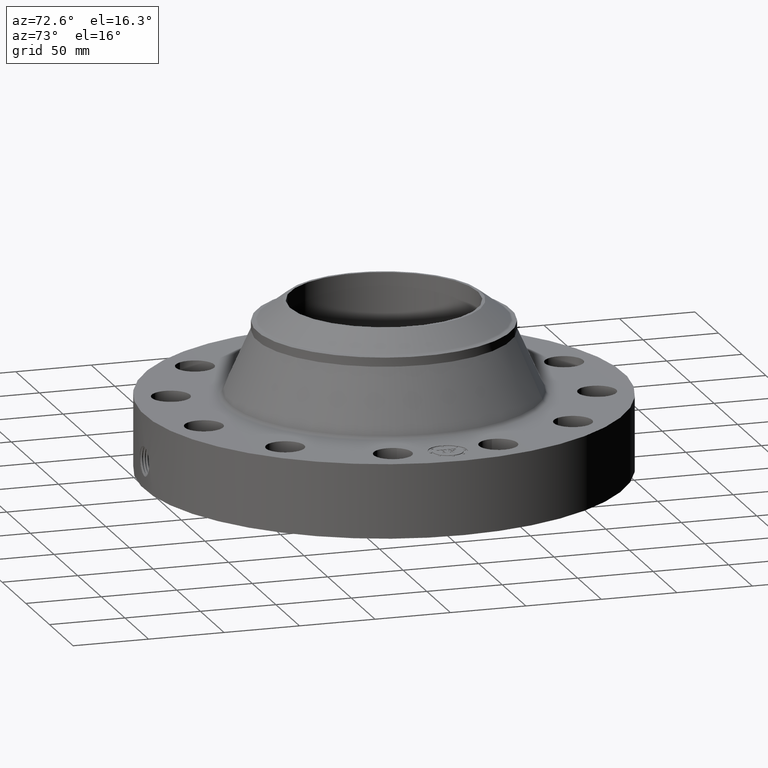
[diagram: clean part render]
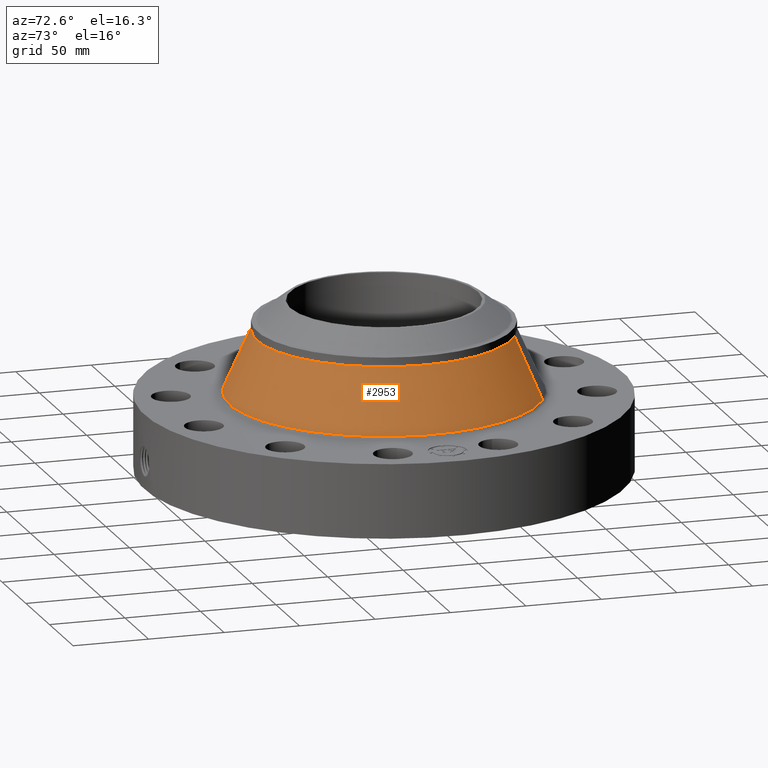
[diagram: same view with one face highlighted and labeled with its STEP entity id]
A machine part, auxiliary view. The second image highlights one B-rep face of the part: STEP entity #2953.
In plain terms, the highlighted conical surface has half-angle 24.051 deg.
Its self-contained STEP definition (entity closure, byte-faithful):
#2215=AXIS2_PLACEMENT_3D('Circle Axis2P3D',#2213,#2214,$) ;
#2914=AXIS2_PLACEMENT_3D('Cone Axis2P3D',#2911,#2912,#2913) ;
#2944=AXIS2_PLACEMENT_3D('Circle Axis2P3D',#2942,#2943,$) ;
#2190=CARTESIAN_POINT('Vertex',(1.58929566048,2.90918619268,3.60132502705)) ;
#2197=CARTESIAN_POINT('Vertex',(-1.58929566048,-2.90918619268,3.60132502705)) ;
#2213=CARTESIAN_POINT('Axis2P3D Location',(0.,0.,3.60132502705)) ;
#2911=CARTESIAN_POINT('Axis2P3D Location',(0.,0.,3.60132502705)) ;
#2920=CARTESIAN_POINT('Vertex',(-1.93125612041,-3.5351406159,2.00309472888)) ;
#2922=CARTESIAN_POINT('Vertex',(1.93125612041,3.5351406159,2.00309472888)) ;
#2925=CARTESIAN_POINT('Line Origine',(-1.76027589045,-3.22216340429,2.80220987797)) ;
#2930=CARTESIAN_POINT('Line Origine',(1.76027589045,3.22216340429,2.80220987797)) ;
#2942=CARTESIAN_POINT('Axis2P3D Location',(0.,0.,2.00309472888)) ;
#2214=DIRECTION('Axis2P3D Direction',(0.,0.,-0.0393700787402)) ;
#2912=DIRECTION('Axis2P3D Direction',(0.,0.,-0.0393700787402)) ;
#2913=DIRECTION('Axis2P3D XDirection',(0.0188750212049,0.0345504945626,0.)) ;
#2926=DIRECTION('Vector Direction',(-0.00769240024621,-0.0140808442012,-0.035952189155)) ;
#2931=DIRECTION('Vector Direction',(0.00769240024621,0.0140808442012,-0.035952189155)) ;
#2943=DIRECTION('Axis2P3D Direction',(0.,0.,-0.0393700787402)) ;
#2927=VECTOR('Line Direction',#2926,0.0393700787402) ;
#2932=VECTOR('Line Direction',#2931,0.0393700787402) ;
#2948=ORIENTED_EDGE('',*,*,#2946,.F.) ;
#2949=ORIENTED_EDGE('',*,*,#2934,.T.) ;
#2950=ORIENTED_EDGE('',*,*,#2217,.T.) ;
#2951=ORIENTED_EDGE('',*,*,#2929,.F.) ;
#2953=ADVANCED_FACE('PartBody',(#2952),#2915,.T.) ;
#2216=CIRCLE('generated circle',#2215,3.31500000001) ;
#2945=CIRCLE('generated circle',#2944,4.02827126406) ;
#2915=CONICAL_SURFACE('Cone',#2914,3.31500000001,0.419762875736) ;
#2217=EDGE_CURVE('',#2191,#2198,#2216,.T.) ;
#2929=EDGE_CURVE('',#2921,#2198,#2928,.F.) ;
#2934=EDGE_CURVE('',#2923,#2191,#2933,.F.) ;
#2946=EDGE_CURVE('',#2923,#2921,#2945,.T.) ;
#2947=EDGE_LOOP('',(#2948,#2949,#2950,#2951)) ;
#2952=FACE_OUTER_BOUND('',#2947,.T.) ;
#2928=LINE('Line',#2925,#2927) ;
#2933=LINE('Line',#2930,#2932) ;
#2191=VERTEX_POINT('',#2190) ;
#2198=VERTEX_POINT('',#2197) ;
#2921=VERTEX_POINT('',#2920) ;
#2923=VERTEX_POINT('',#2922) ;